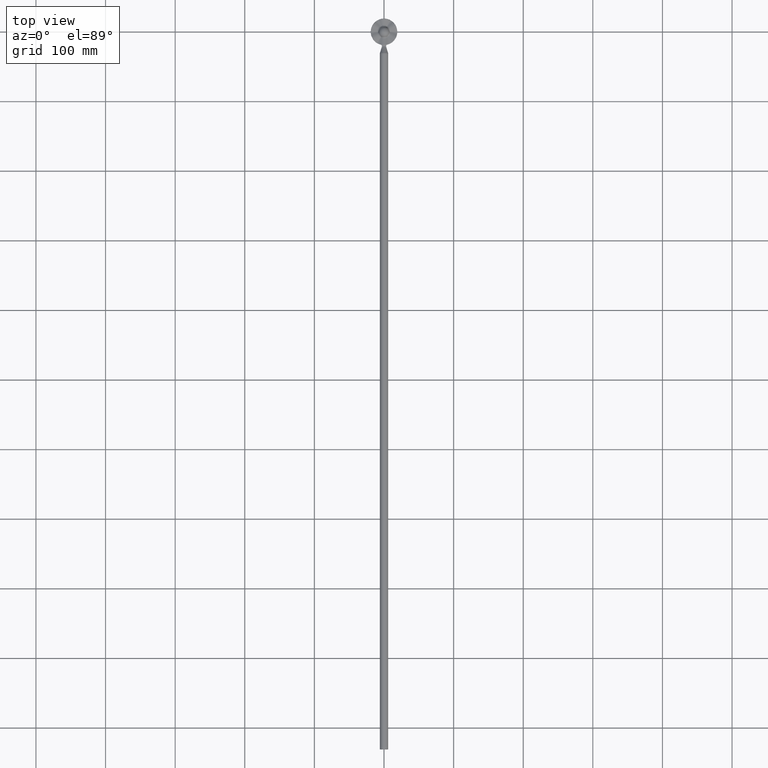
[diagram: clean part render]
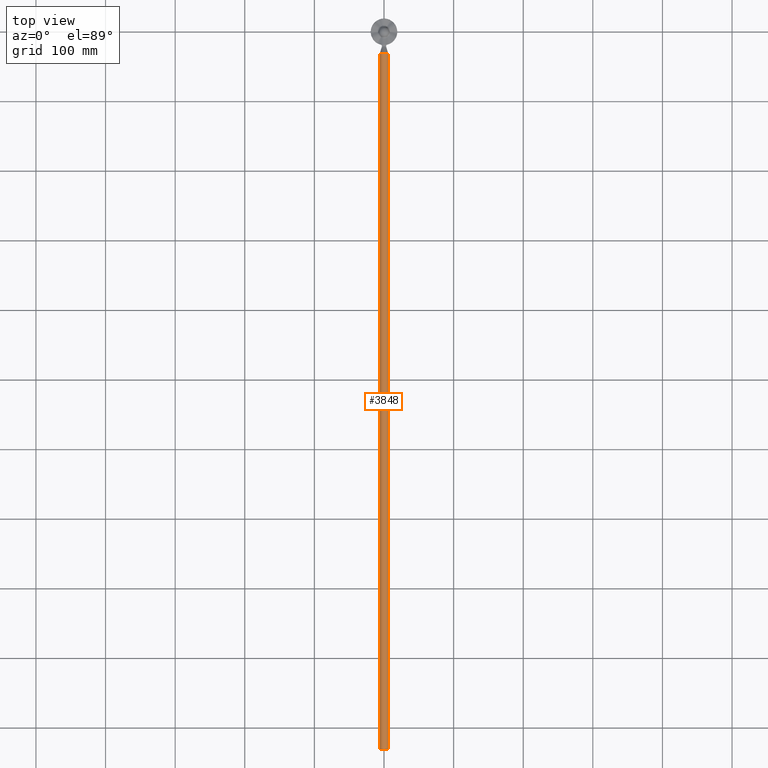
[diagram: same view with one face highlighted and labeled with its STEP entity id]
A machine part, top view. The second image highlights one B-rep face of the part: STEP entity #3848.
In plain terms, the highlighted cylindrical surface (bore or boss wall) has radius 6 mm, axis along (-0, 1, 0).
Its self-contained STEP definition (entity closure, byte-faithful):
#131 = CARTESIAN_POINT ( 'NONE',  ( 5.886300004217251747, -31.32682303456855877, 0.2097853326754756387 ) ) ;
#281 = CARTESIAN_POINT ( 'NONE',  ( -0.1872538489531399564, -31.53400665994032082, 4.989013771375117479 ) ) ;
#363 = CARTESIAN_POINT ( 'NONE',  ( -4.597096388880149043, -31.44678382325123778, 2.862642876823612070 ) ) ;
#588 = EDGE_LOOP ( 'NONE', ( #5230, #15567, #5427, #6414 ) ) ;
#644 = VERTEX_POINT ( 'NONE', #16291 ) ;
#1265 = CARTESIAN_POINT ( 'NONE',  ( -3.499530197799721520, -31.48948423986999856, -5.899045824416008443 ) ) ;
#1296 = CARTESIAN_POINT ( 'NONE',  ( -5.980824593588182303, -31.29264283208015129, -0.5316251975531532947 ) ) ;
#1329 = CARTESIAN_POINT ( 'NONE',  ( 5.232351433599151669, -31.40704467463310223, -3.971052694575021746 ) ) ;
#1405 = CARTESIAN_POINT ( 'NONE',  ( -3.794509748292119955, -31.48002512051589008, -5.673503951410304502 ) ) ;
#1480 = CARTESIAN_POINT ( 'NONE',  ( 5.740187679845357493, -31.35231371782963450, -2.767237560720208656 ) ) ;
#1752 = CARTESIAN_POINT ( 'NONE',  ( -5.980824593588184079, -31.29264283208014419, -1.490243329513442072 ) ) ;
#1862 = CARTESIAN_POINT ( 'NONE',  ( 4.593560343720461958, -31.44696950271779556, 2.866979141981076395 ) ) ;
#1879 = CARTESIAN_POINT ( 'NONE',  ( 0.000000000000000000, -1031.000000000000000, -1.010934263533310729 ) ) ;
#2094 = CARTESIAN_POINT ( 'NONE',  ( -4.344110695158198254, -31.45887366500201665, 3.144487258084326609 ) ) ;
#2328 = CARTESIAN_POINT ( 'NONE',  ( -5.039657876854525043, -31.42101400900815378, 2.266220532201666860 ) ) ;
#2645 = FACE_OUTER_BOUND ( 'NONE', #588, .T. ) ;
#2985 = CARTESIAN_POINT ( 'NONE',  ( 4.344110695158151181, -31.45887366500203086, -5.166355785150996915 ) ) ;
#3137 = CARTESIAN_POINT ( 'NONE',  ( 0.1872538489530503059, -31.53400665994032792, -7.010882298441741156 ) ) ;
#3210 = CARTESIAN_POINT ( 'NONE',  ( -5.230869636126747935, -31.40714947506117483, -3.973429827487333643 ) ) ;
#3490 = DIRECTION ( 'NONE',  ( -0.000000000000000000, 1.000000000000000000, 0.000000000000000000 ) ) ;
#3521 = CARTESIAN_POINT ( 'NONE',  ( 5.950807246862652278, -31.31045227321516933, -0.1570683650777589535 ) ) ;
#3602 = CARTESIAN_POINT ( 'NONE',  ( 3.794509748292029805, -31.48002512051592561, 3.651635424343754099 ) ) ;
#3690 = CARTESIAN_POINT ( 'NONE',  ( -5.980824593588182303, -31.29264283208015129, -0.5316251975531532947 ) ) ;
#3755 = CARTESIAN_POINT ( 'NONE',  ( -0.9321636357055937960, -31.53143343081302774, 4.919160688444326190 ) ) ;
#3848 = ADVANCED_FACE ( 'NONE', ( #2645, #20497 ), #15879, .T. ) ;
#4000 = CARTESIAN_POINT ( 'NONE',  ( -5.886382432888417782, -31.32678016191459847, 0.2088711881738437581 ) ) ;
#4075 = CARTESIAN_POINT ( 'NONE',  ( -1.483267525632043782, -31.52705274007536929, 4.814847931177954621 ) ) ;
#4242 = ORIENTED_EDGE ( 'NONE', *, *, #14618, .F. ) ;
#4614 = EDGE_CURVE ( 'NONE', #19056, #13083, #16847, .T. ) ;
#4763 = CARTESIAN_POINT ( 'NONE',  ( 5.683140580595217983, -31.36073365908484334, -2.943991468238332132 ) ) ;
#4836 = CARTESIAN_POINT ( 'NONE',  ( -5.690170302778537526, -31.36102079688873800, -2.950172773256488412 ) ) ;
#4913 = CARTESIAN_POINT ( 'NONE',  ( 1.839948646969070900, -31.52331605911752632, -6.733935338577266450 ) ) ;
#4992 = CARTESIAN_POINT ( 'NONE',  ( -5.886300004217281945, -31.32682303456855166, -2.231653859741960400 ) ) ;
#5199 = B_SPLINE_CURVE_WITH_KNOTS ( 'NONE', 3,
 ( #14625, #16364, #19566, #12144 ),
 .UNSPECIFIED., .F., .F.,
 ( 4, 4 ),
 ( 2.085797838004726016E-05, 0.0009806501438677139772 ),
 .UNSPECIFIED. ) ;
#5230 = ORIENTED_EDGE ( 'NONE', *, *, #11716, .T. ) ;
#5290 = DIRECTION ( 'NONE',  ( 0.000000000000000000, 0.000000000000000000, 1.000000000000000000 ) ) ;
#5396 = CARTESIAN_POINT ( 'NONE',  ( 5.038314140071865843, -31.42111225251553819, 2.268455868491442651 ) ) ;
#5427 = ORIENTED_EDGE ( 'NONE', *, *, #8659, .T. ) ;
#5521 = AXIS2_PLACEMENT_3D ( 'NONE', #1879, #10385, #8632 ) ;
#5759 = CARTESIAN_POINT ( 'NONE',  ( -5.232351433599173873, -31.40704467463310934, 1.949184167508358989 ) ) ;
#5918 = CARTESIAN_POINT ( 'NONE',  ( -3.501959894300049392, -31.48940342536948123, 3.875267941059746146 ) ) ;
#6414 = ORIENTED_EDGE ( 'NONE', *, *, #14448, .T. ) ;
#6651 = CARTESIAN_POINT ( 'NONE',  ( 4.597096388880111739, -31.44678382325125199, -4.884511403890280157 ) ) ;
#6723 = CARTESIAN_POINT ( 'NONE',  ( 5.980824593588178750, -31.29264283208013708, -1.490243329513506909 ) ) ;
#7046 = CARTESIAN_POINT ( 'NONE',  ( 5.690170302778487788, -31.36102079688871669, 0.9283042461900062881 ) ) ;
#7116 = CARTESIAN_POINT ( 'NONE',  ( 2.525389533038719492, -31.51197191574037149, 4.434906835200018271 ) ) ;
#8222 = CARTESIAN_POINT ( 'NONE',  ( -3.023117060075550366, -31.50158991494615535, -6.197055145301976431 ) ) ;
#8295 = CARTESIAN_POINT ( 'NONE',  ( -5.556744423928802412, -31.37718907279949576, -3.304614390258957535 ) ) ;
#8374 = CARTESIAN_POINT ( 'NONE',  ( 5.552083568024987592, -31.37663715455941826, -3.293293803381722284 ) ) ;
#8444 = CARTESIAN_POINT ( 'NONE',  ( 5.477618432932966464, -31.38444777390030893, -3.466671823984977863 ) ) ;
#8619 = CARTESIAN_POINT ( 'NONE',  ( 5.980824593588172533, -31.29264283208015129, -0.5316251975530391638 ) ) ;
#8632 = DIRECTION ( 'NONE',  ( 0.000000000000000000, 0.000000000000000000, -1.000000000000000000 ) ) ;
#8659 = EDGE_CURVE ( 'NONE', #13083, #644, #10823, .T. ) ;
#8845 = CARTESIAN_POINT ( 'NONE',  ( 1.837223403350443762, -31.52334784121415368, 4.712899663826461527 ) ) ;
#9078 = CARTESIAN_POINT ( 'NONE',  ( -1.839948646969142620, -31.52331605911751922, 4.712066811510623232 ) ) ;
#9972 = CARTESIAN_POINT ( 'NONE',  ( 1.483267525631964734, -31.52705274007537639, -6.836716458244594286 ) ) ;
#10043 = CARTESIAN_POINT ( 'NONE',  ( -1.837223403350540130, -31.52334784121414657, -6.734768190893050566 ) ) ;
#10188 = CARTESIAN_POINT ( 'NONE',  ( 2.532227999009399433, -31.51233248275682541, -6.463087387710074516 ) ) ;
#10385 = DIRECTION ( 'NONE',  ( 0.000000000000000000, -1.000000000000000000, 0.000000000000000000 ) ) ;
#10433 = CIRCLE ( 'NONE', #5521, 6.000000000000000888 ) ;
#10487 = VERTEX_POINT ( 'NONE', #16653 ) ;
#10595 = CARTESIAN_POINT ( 'NONE',  ( 2.355633855123365095, -31.51513994027820686, 4.510424745447179085 ) ) ;
#10676 = CARTESIAN_POINT ( 'NONE',  ( 0.3694900830817235415, -31.53400961817193249, 4.989168967303750257 ) ) ;
#10823 = B_SPLINE_CURVE_WITH_KNOTS ( 'NONE', 3,
 ( #11870, #13512, #4992, #4836, #8295, #3210, #18653, #17056, #22343, #1405, #1265, #8222, #20537, #20393, #22192, #10043, #22122, #11793, #18800, #3137, #18721, #15245, #15096, #9972, #4913, #10188, #13376, #22274, #16990, #2985, #6651, #15319, #1329, #8444, #8374, #4763, #1480, #20313, #16829, #6723 ),
 .UNSPECIFIED., .F., .F.,
 ( 4, 2, 2, 2, 2, 2, 2, 2, 2, 2, 2, 2, 2, 2, 2, 2, 2, 2, 2, 4 ),
 ( 2.074007705044541845E-05, 0.001138002531956980139, 0.002255264986863514832, 0.003372527441770049959, 0.004489789896676583784, 0.005607052351583118911, 0.006165683579036386475, 0.006724314806489655773, 0.007841577261396193502, 0.008958839716302730363, 0.009517470943755998794, 0.01007610217120926376, 0.01119336462611580235, 0.01231062708102233748, 0.01342788953592887434, 0.01454515199083541120, 0.01566241444574194633, 0.01622104567319521476, 0.01677967690064847972, 0.01789693935555501658 ),
 .UNSPECIFIED. ) ;
#10997 = CARTESIAN_POINT ( 'NONE',  ( -2.870838083351453740, -31.50547813644294948, 4.270825271378800636 ) ) ;
#11082 = CARTESIAN_POINT ( 'NONE',  ( -5.740187679845367263, -31.35231371782963450, 0.7453690336535480077 ) ) ;
#11716 = EDGE_CURVE ( 'NONE', #18730, #19056, #16608, .T. ) ;
#11793 = CARTESIAN_POINT ( 'NONE',  ( -0.7397846592634365059, -31.53294532206814793, -6.977004780480611679 ) ) ;
#11870 = CARTESIAN_POINT ( 'NONE',  ( -5.980824593588184079, -31.29264283208014419, -1.490243329513442072 ) ) ;
#12144 = CARTESIAN_POINT ( 'NONE',  ( 5.980824593588172533, -31.29264283208015129, -0.5316251975530391638 ) ) ;
#12253 = CARTESIAN_POINT ( 'NONE',  ( 5.230869636126682209, -31.40714947506118193, 1.951561300420822542 ) ) ;
#12409 = CARTESIAN_POINT ( 'NONE',  ( -0.3730535375400403364, -31.53381541976660429, 4.980370988252304620 ) ) ;
#12418 = CARTESIAN_POINT ( 'NONE',  ( -5.980824593588184079, -31.29264283208014419, -1.490243329513442072 ) ) ;
#12531 = CARTESIAN_POINT ( 'NONE',  ( 0.000000000000000000, -32.00000000000000000, -1.010934263533310729 ) ) ;
#12790 = CARTESIAN_POINT ( 'NONE',  ( -5.683140580595232194, -31.36073365908485044, 0.9221229411716668212 ) ) ;
#13083 = VERTEX_POINT ( 'NONE', #1752 ) ;
#13376 = CARTESIAN_POINT ( 'NONE',  ( 2.870838083351383574, -31.50547813644297790, -6.292693798445463393 ) ) ;
#13512 = CARTESIAN_POINT ( 'NONE',  ( -5.950807246862674482, -31.31045227321516933, -1.864800161988724669 ) ) ;
#13977 = CARTESIAN_POINT ( 'NONE',  ( 4.340421073411850017, -31.45903133705829546, 3.148224933909795631 ) ) ;
#14124 = CARTESIAN_POINT ( 'NONE',  ( -0.7450991292659224774, -31.53253492429049842, 4.945552523954108715 ) ) ;
#14208 = CARTESIAN_POINT ( 'NONE',  ( -5.950809890247490408, -31.31045070488181636, -0.1571013492671436695 ) ) ;
#14427 = EDGE_LOOP ( 'NONE', ( #4242 ) ) ;
#14448 = EDGE_CURVE ( 'NONE', #644, #18730, #5199, .T. ) ;
#14618 = EDGE_CURVE ( 'NONE', #10487, #10487, #10433, .T. ) ;
#14625 = CARTESIAN_POINT ( 'NONE',  ( 5.980824593588178750, -31.29264283208013708, -1.490243329513506909 ) ) ;
#15096 = CARTESIAN_POINT ( 'NONE',  ( 0.9321636357054987609, -31.53143343081302064, -6.941029215510963191 ) ) ;
#15245 = CARTESIAN_POINT ( 'NONE',  ( 0.7450991292658282195, -31.53253492429049132, -6.967421051020741274 ) ) ;
#15319 = CARTESIAN_POINT ( 'NONE',  ( 5.039657876854499285, -31.42101400900816088, -4.288089059268329173 ) ) ;
#15567 = ORIENTED_EDGE ( 'NONE', *, *, #4614, .T. ) ;
#15699 = CARTESIAN_POINT ( 'NONE',  ( 3.023117060075444673, -31.50158991494616245, 4.175186618235419367 ) ) ;
#15783 = CARTESIAN_POINT ( 'NONE',  ( 5.556744423928746457, -31.37718907279948866, 1.282745863192470637 ) ) ;
#15879 = CYLINDRICAL_SURFACE ( 'NONE', #18453, 6.000000000000000888 ) ;
#16242 = CARTESIAN_POINT ( 'NONE',  ( 5.980824593588172533, -31.29264283208015129, -0.5316251975530391638 ) ) ;
#16250 = CARTESIAN_POINT ( 'NONE',  ( -2.532227999009469599, -31.51233248275681831, 4.441218860643421529 ) ) ;
#16291 = CARTESIAN_POINT ( 'NONE',  ( 5.980824593588178750, -31.29264283208013708, -1.490243329513506909 ) ) ;
#16364 = CARTESIAN_POINT ( 'NONE',  ( 6.006385932403999206, -31.29386200887943659, -1.171288620150647830 ) ) ;
#16608 = B_SPLINE_CURVE_WITH_KNOTS ( 'NONE', 3,
 ( #8619, #3521, #131, #7046, #15783, #12253, #5396, #1862, #13977, #3602, #19198, #15699, #17455, #7116, #10595, #8845, #19270, #21005, #10676, #281, #12409, #14124, #3755, #4075, #9078, #16250, #10997, #5918, #17997, #2094, #363, #2328, #5759, #17910, #21320, #12790, #11082, #4000, #14208, #19585 ),
 .UNSPECIFIED., .F., .F.,
 ( 4, 2, 2, 2, 2, 2, 2, 2, 2, 2, 2, 2, 2, 2, 2, 2, 2, 2, 2, 4 ),
 ( 2.074007705039311247E-05, 0.001138002531956935036, 0.002255264986863476668, 0.003372527441770018734, 0.004489789896676560366, 0.005607052351583102431, 0.006165683579036375199, 0.006724314806489647099, 0.007841577261396191767, 0.008958839716302737302, 0.009517470943756010937, 0.01007610217120928284, 0.01119336462611582837, 0.01231062708102237564, 0.01342788953592891771, 0.01454515199083546151, 0.01566241444574200184, 0.01622104567319527374, 0.01677967690064854564, 0.01789693935555508597 ),
 .UNSPECIFIED. ) ;
#16653 = CARTESIAN_POINT ( 'NONE',  ( 0.000000000000000000, -1031.000000000000000, -7.010934263533311395 ) ) ;
#16829 = CARTESIAN_POINT ( 'NONE',  ( 5.950809890247486855, -31.31045070488178084, -1.864767177799508735 ) ) ;
#16847 = B_SPLINE_CURVE_WITH_KNOTS ( 'NONE', 3,
 ( #3690, #19208, #17540, #12418 ),
 .UNSPECIFIED., .F., .F.,
 ( 4, 4 ),
 ( 2.085797838002507806E-05, 0.0009806501438675120988 ),
 .UNSPECIFIED. ) ;
#16990 = CARTESIAN_POINT ( 'NONE',  ( 3.796623769147341676, -31.47995943904208360, -5.671886281056803369 ) ) ;
#17056 = CARTESIAN_POINT ( 'NONE',  ( -4.593560343720549000, -31.44696950271778135, -4.888847669047596156 ) ) ;
#17455 = CARTESIAN_POINT ( 'NONE',  ( 2.858715246617761885, -31.50523856403768974, 4.267562180056444276 ) ) ;
#17540 = CARTESIAN_POINT ( 'NONE',  ( -6.006384077954277423, -31.29386192042935733, -1.171311759997702096 ) ) ;
#17910 = CARTESIAN_POINT ( 'NONE',  ( -5.477618432932989556, -31.38444777390031604, 1.444803296918307556 ) ) ;
#17997 = CARTESIAN_POINT ( 'NONE',  ( -3.796623769147389638, -31.47995943904208360, 3.650017753990143277 ) ) ;
#18453 = AXIS2_PLACEMENT_3D ( 'NONE', #12531, #3490, #5290 ) ;
#18653 = CARTESIAN_POINT ( 'NONE',  ( -5.038314140071935121, -31.42111225251553819, -4.290324395557957082 ) ) ;
#18721 = CARTESIAN_POINT ( 'NONE',  ( 0.3730535375399496867, -31.53381541976660429, -7.002239515318929186 ) ) ;
#18730 = VERTEX_POINT ( 'NONE', #16242 ) ;
#18800 = CARTESIAN_POINT ( 'NONE',  ( -0.3694900830818155790, -31.53400961817193249, -7.011037494370365053 ) ) ;
#19056 = VERTEX_POINT ( 'NONE', #1296 ) ;
#19198 = CARTESIAN_POINT ( 'NONE',  ( 3.499530197799628262, -31.48948423986999856, 3.877177297349454044 ) ) ;
#19208 = CARTESIAN_POINT ( 'NONE',  ( -6.006385932403994765, -31.29386200887942948, -0.8505799069159531989 ) ) ;
#19270 = CARTESIAN_POINT ( 'NONE',  ( 1.478569222874388966, -31.52710709362208874, 4.816167229356445034 ) ) ;
#19566 = CARTESIAN_POINT ( 'NONE',  ( 6.006384077954278311, -31.29386192042937154, -0.8505567670688388704 ) ) ;
#19585 = CARTESIAN_POINT ( 'NONE',  ( -5.980824593588182303, -31.29264283208015129, -0.5316251975531532947 ) ) ;
#20313 = CARTESIAN_POINT ( 'NONE',  ( 5.886382432888412453, -31.32678016191459847, -2.230739715240499077 ) ) ;
#20393 = CARTESIAN_POINT ( 'NONE',  ( -2.525389533038819412, -31.51197191574039280, -6.456775362266593099 ) ) ;
#20497 = FACE_OUTER_BOUND ( 'NONE', #14427, .T. ) ;
#20537 = CARTESIAN_POINT ( 'NONE',  ( -2.858715246617866690, -31.50523856403769685, -6.289430707123010222 ) ) ;
#21005 = CARTESIAN_POINT ( 'NONE',  ( 0.7397846592633384732, -31.53294532206814793, 4.955136253414003988 ) ) ;
#21320 = CARTESIAN_POINT ( 'NONE',  ( -5.552083568025008020, -31.37663715455941826, 1.271425276315050201 ) ) ;
#22122 = CARTESIAN_POINT ( 'NONE',  ( -1.478569222874507538, -31.52710709362208163, -6.838035756423033185 ) ) ;
#22192 = CARTESIAN_POINT ( 'NONE',  ( -2.355633855123462794, -31.51513994027819976, -6.532293272513755689 ) ) ;
#22274 = CARTESIAN_POINT ( 'NONE',  ( 3.501959894299997877, -31.48940342536948123, -5.897136468126405795 ) ) ;
#22343 = CARTESIAN_POINT ( 'NONE',  ( -4.340421073411937947, -31.45903133705830257, -5.170093460976326938 ) ) ;